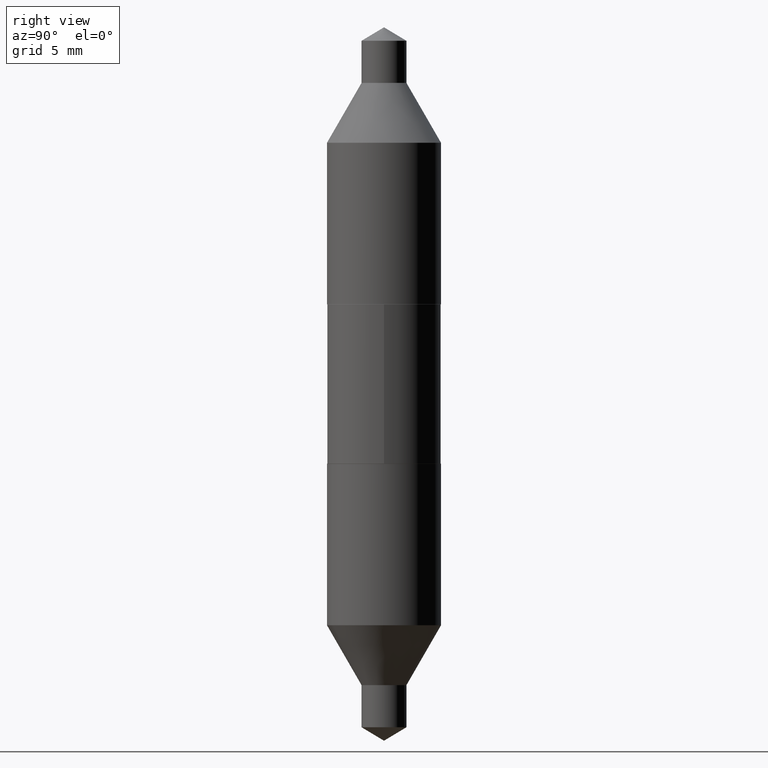
[diagram: clean part render]
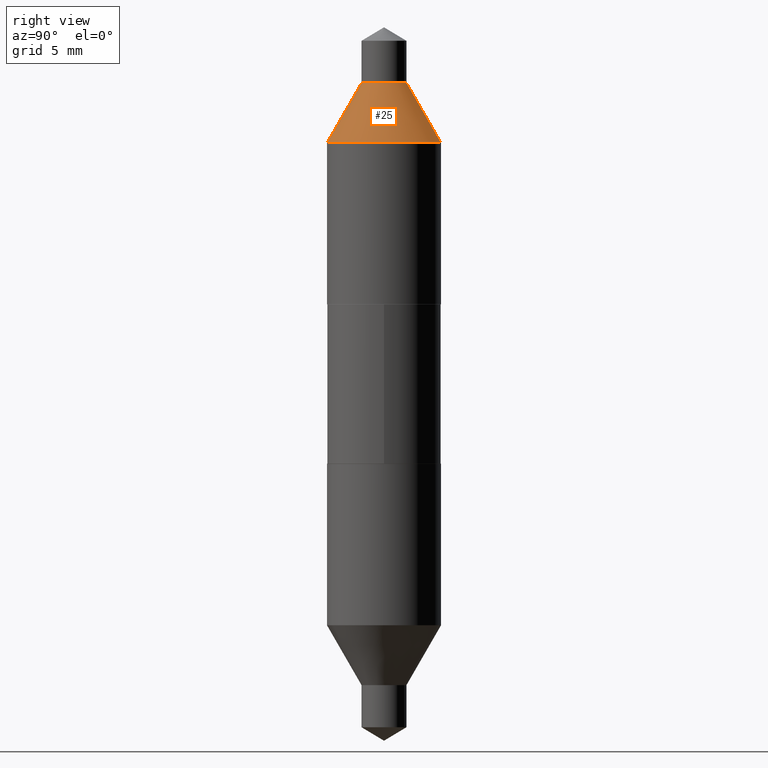
[diagram: same view with one face highlighted and labeled with its STEP entity id]
A machine part, right view. The second image highlights one B-rep face of the part: STEP entity #25.
In plain terms, the highlighted conical surface has half-angle 30 deg.
Its self-contained STEP definition (entity closure, byte-faithful):
#16 = ORIENTED_EDGE ( 'NONE', *, *, #639, .F. ) ;
#25 = ADVANCED_FACE ( 'NONE', ( #261 ), #619, .T. ) ;
#73 = EDGE_CURVE ( 'NONE', #462, #294, #505, .T. ) ;
#117 = CIRCLE ( 'NONE', #446, 0.06200000000000000649 ) ;
#147 = CARTESIAN_POINT ( 'NONE',  ( -2.041268414482917372E-29, 2.891909187557482556E-15, 0.8315000000000000169 ) ) ;
#207 = DIRECTION ( 'NONE',  ( -6.982962677686265922E-15, -1.000000000000000000, 4.406206441393972551E-15 ) ) ;
#225 = CARTESIAN_POINT ( 'NONE',  ( 4.253508758618130751E-16, 0.06200000000000290001, 0.8314999999999996838 ) ) ;
#230 = CARTESIAN_POINT ( 'NONE',  ( -2.041268414482917372E-29, 2.891909187557482556E-15, 0.8315000000000000169 ) ) ;
#231 = CARTESIAN_POINT ( 'NONE',  ( -4.329436860165689754E-16, -0.06199999999999711298, 0.8315000000000002389 ) ) ;
#233 = CARTESIAN_POINT ( 'NONE',  ( -1.634634905970335902E-29, 2.317425452117836237E-15, 0.6660891478771698848 ) ) ;
#236 = VERTEX_POINT ( 'NONE', #280 ) ;
#243 = EDGE_CURVE ( 'NONE', #462, #368, #117, .T. ) ;
#250 = LINE ( 'NONE', #630, #411 ) ;
#254 = DIRECTION ( 'NONE',  ( -2.458324247133585070E-29, 3.473071615718708250E-15, 1.000000000000000000 ) ) ;
#261 = FACE_OUTER_BOUND ( 'NONE', #645, .T. ) ;
#277 = ORIENTED_EDGE ( 'NONE', *, *, #289, .T. ) ;
#280 = CARTESIAN_POINT ( 'NONE',  ( 1.080528434649010849E-15, 0.1575000000000023603, 0.6660891478771693297 ) ) ;
#289 = EDGE_CURVE ( 'NONE', #294, #236, #412, .T. ) ;
#294 = VERTEX_POINT ( 'NONE', #658 ) ;
#315 = AXIS2_PLACEMENT_3D ( 'NONE', #147, #431, #352 ) ;
#352 = DIRECTION ( 'NONE',  ( -6.982962677686265922E-15, -1.000000000000000000, 4.406206441393972551E-15 ) ) ;
#363 = DIRECTION ( 'NONE',  ( 3.430248998885749215E-15, 0.4999999999999916178, -0.8660254037844433705 ) ) ;
#368 = VERTEX_POINT ( 'NONE', #225 ) ;
#397 = ORIENTED_EDGE ( 'NONE', *, *, #243, .F. ) ;
#411 = VECTOR ( 'NONE', #363, 39.37007874015748854 ) ;
#412 = CIRCLE ( 'NONE', #435, 0.1575000000000000289 ) ;
#424 = VECTOR ( 'NONE', #496, 39.37007874015748854 ) ;
#431 = DIRECTION ( 'NONE',  ( 2.458324247133585070E-29, -3.473071615718708250E-15, -1.000000000000000000 ) ) ;
#435 = AXIS2_PLACEMENT_3D ( 'NONE', #233, #442, #667 ) ;
#442 = DIRECTION ( 'NONE',  ( -2.458324247133585070E-29, 3.473071615718708250E-15, 1.000000000000000000 ) ) ;
#446 = AXIS2_PLACEMENT_3D ( 'NONE', #230, #254, #207 ) ;
#462 = VERTEX_POINT ( 'NONE', #558 ) ;
#496 = DIRECTION ( 'NONE',  ( -3.491481338843074980E-15, -0.4999999999999976685, -0.8660254037844400399 ) ) ;
#505 = LINE ( 'NONE', #231, #424 ) ;
#558 = CARTESIAN_POINT ( 'NONE',  ( -4.329436860165689754E-16, -0.06199999999999711298, 0.8315000000000002389 ) ) ;
#619 = CONICAL_SURFACE ( 'NONE', #315, 0.06200000000000000649, 0.5235987755982927094 ) ;
#630 = CARTESIAN_POINT ( 'NONE',  ( 4.253508758618145542E-16, 0.06200000000000290001, 0.8314999999999996838 ) ) ;
#639 = EDGE_CURVE ( 'NONE', #368, #236, #250, .T. ) ;
#645 = EDGE_LOOP ( 'NONE', ( #16, #397, #655, #277 ) ) ;
#655 = ORIENTED_EDGE ( 'NONE', *, *, #73, .T. ) ;
#658 = CARTESIAN_POINT ( 'NONE',  ( -1.099816621735603257E-15, -0.1574999999999976974, 0.6660891478771703289 ) ) ;
#667 = DIRECTION ( 'NONE',  ( -6.982962677686264344E-15, -1.000000000000000000, 3.469013325287952504E-15 ) ) ;